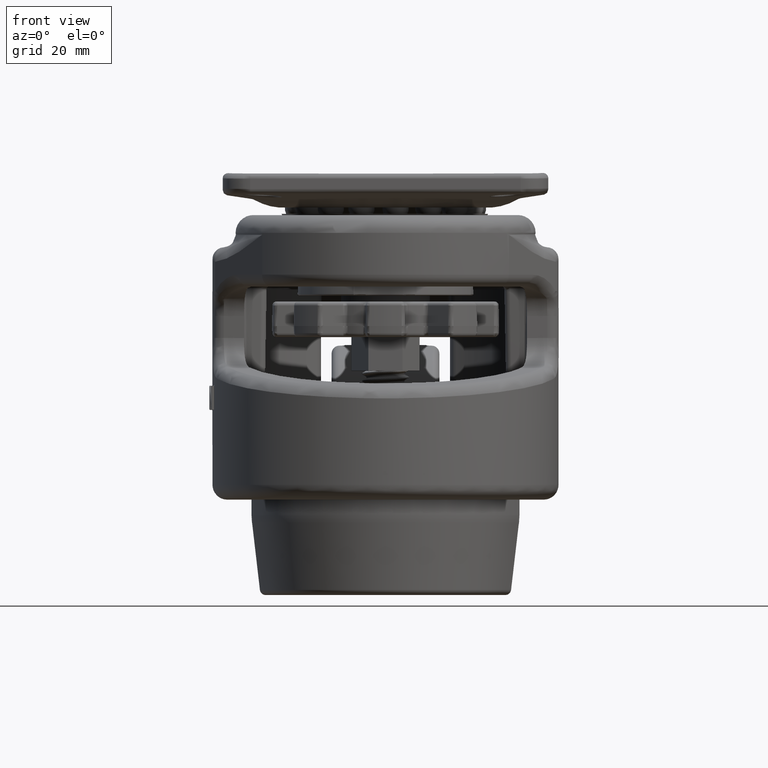
[diagram: clean part render]
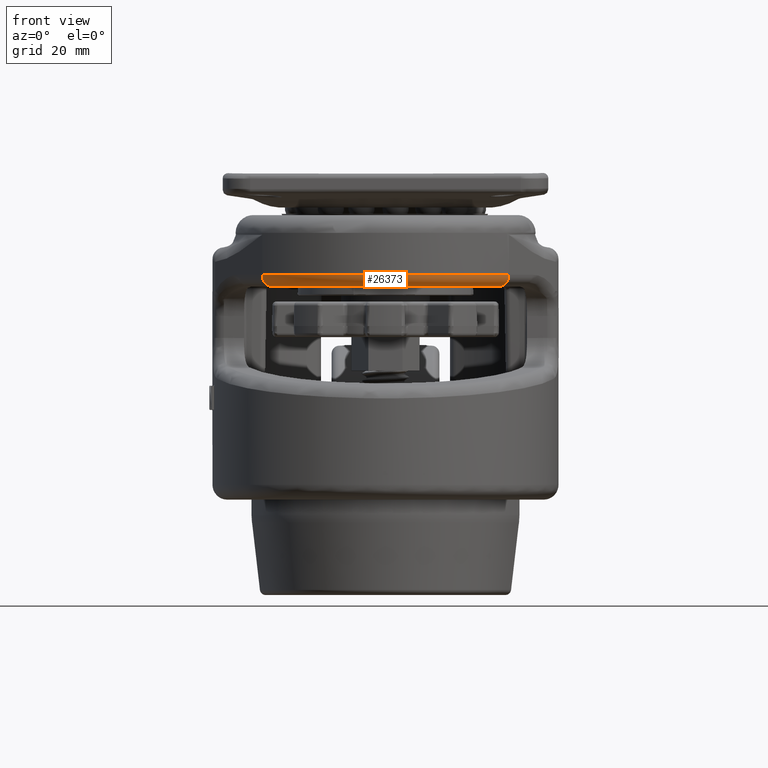
[diagram: same view with one face highlighted and labeled with its STEP entity id]
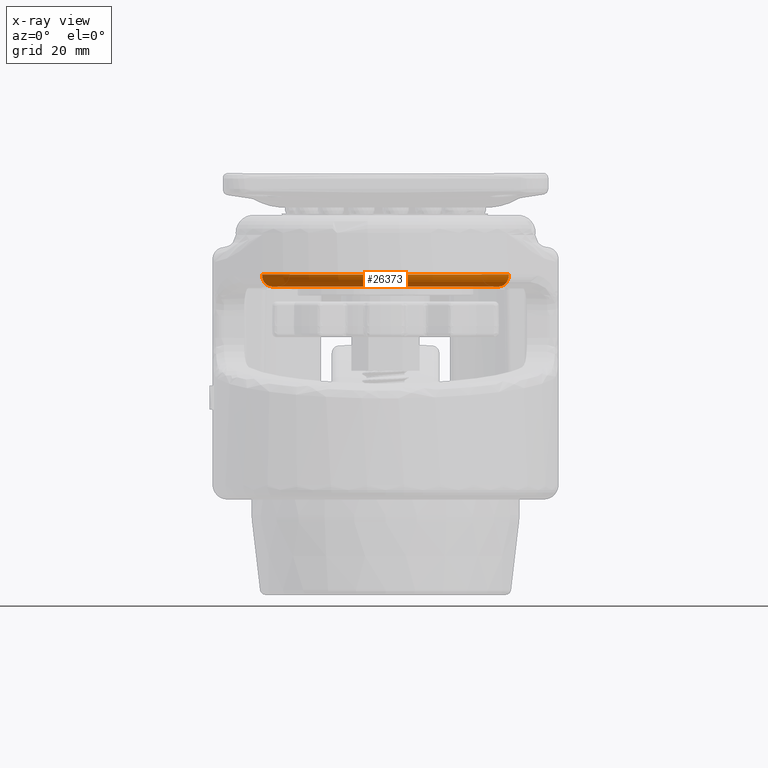
[diagram: x-ray of the same camera — body ghosted, the highlighted face saturated]
A machine part, front view. The second image highlights one B-rep face of the part: STEP entity #26373.
The next image is the same camera in x-ray: the body ghosted, the highlighted face saturated — about 0% of this face is hidden behind the body in this view.
In plain terms, the highlighted toroidal blend (fillet) surface has major radius 23.3659 mm and minor (blend) radius 2 mm.
Its self-contained STEP definition (entity closure, byte-faithful):
#794=TOROIDAL_SURFACE('',#28701,23.3659381053473,2.);
#6821=FACE_OUTER_BOUND('',#8529,.T.);
#8529=EDGE_LOOP('',(#14418,#14419,#14420,#14421));
#14418=ORIENTED_EDGE('',*,*,#19997,.F.);
#14419=ORIENTED_EDGE('',*,*,#19920,.T.);
#14420=ORIENTED_EDGE('',*,*,#19998,.T.);
#14421=ORIENTED_EDGE('',*,*,#19842,.T.);
#19842=EDGE_CURVE('',#23032,#23031,#24652,.T.);
#19920=EDGE_CURVE('',#23070,#23103,#24680,.T.);
#19997=EDGE_CURVE('',#23070,#23031,#24702,.T.);
#19998=EDGE_CURVE('',#23103,#23032,#24703,.T.);
#23031=VERTEX_POINT('',#64770);
#23032=VERTEX_POINT('',#64772);
#23070=VERTEX_POINT('',#64974);
#23103=VERTEX_POINT('',#65411);
#24652=CIRCLE('',#28601,23.3659381053473);
#24680=CIRCLE('',#28652,25.3659381053473);
#24702=CIRCLE('',#28700,2.);
#24703=CIRCLE('',#28702,2.);
#26373=ADVANCED_FACE('',(#6821),#794,.T.);
#28601=AXIS2_PLACEMENT_3D('',#64773,#33421,#33422);
#28652=AXIS2_PLACEMENT_3D('',#65413,#33549,#33550);
#28700=AXIS2_PLACEMENT_3D('',#66481,#33664,#33665);
#28701=AXIS2_PLACEMENT_3D('',#66482,#33666,#33667);
#28702=AXIS2_PLACEMENT_3D('',#66483,#33668,#33669);
#33421=DIRECTION('center_axis',(0.,0.,1.));
#33422=DIRECTION('ref_axis',(1.,0.,0.));
#33549=DIRECTION('center_axis',(0.,0.,-1.));
#33550=DIRECTION('ref_axis',(1.,0.,0.));
#33664=DIRECTION('center_axis',(0.569429227694749,0.822040360716529,0.));
#33665=DIRECTION('ref_axis',(0.822040360716529,-0.569429227694749,0.));
#33666=DIRECTION('center_axis',(0.,0.,-1.));
#33667=DIRECTION('ref_axis',(1.,0.,0.));
#33668=DIRECTION('center_axis',(0.569429227694749,-0.822040360716529,0.));
#33669=DIRECTION('ref_axis',(-0.822040360716529,-0.569429227694749,0.));
#64770=CARTESIAN_POINT('',(30.2344457774366,-20.1020232243607,-0.0054412455042941));
#64772=CARTESIAN_POINT('',(-8.18104259976283,-20.1020232243607,-0.0054412455042941));
#64773=CARTESIAN_POINT('Origin',(11.0267015888369,-6.79677513466949,-0.0054412455042941));
#64974=CARTESIAN_POINT('',(31.8785264988697,-21.2408816797502,1.99455875449571));
#65411=CARTESIAN_POINT('',(-9.82512332119589,-21.2408816797502,1.99455875449571));
#65413=CARTESIAN_POINT('Origin',(11.0267015888369,-6.79677513466949,1.99455875449571));
#66481=CARTESIAN_POINT('Origin',(30.2344457774366,-20.1020232243607,1.99455875449571));
#66482=CARTESIAN_POINT('Origin',(11.0267015888369,-6.79677513466949,1.99455875449571));
#66483=CARTESIAN_POINT('Origin',(-8.18104259976284,-20.1020232243607,1.99455875449571));